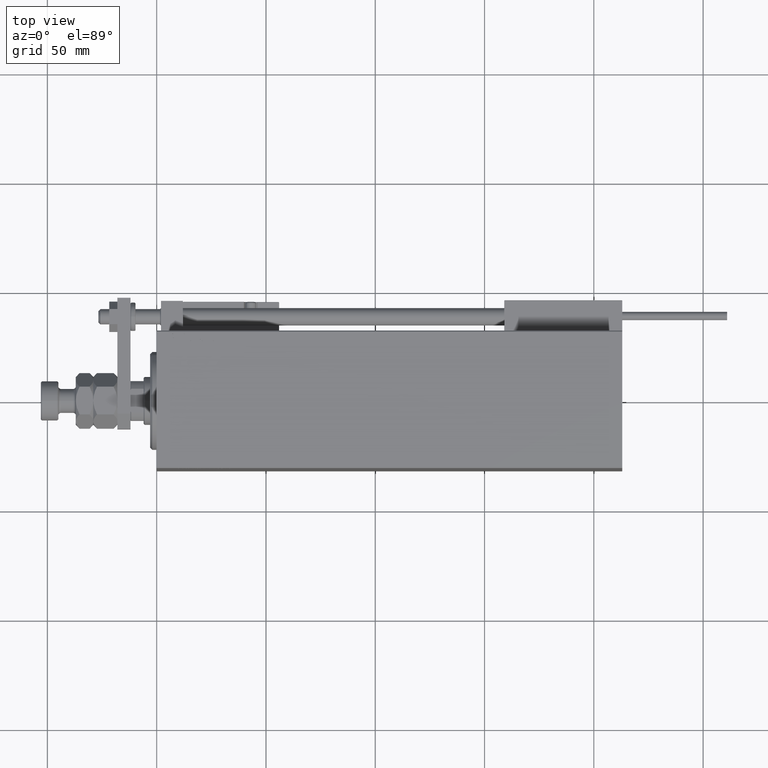
[diagram: clean part render]
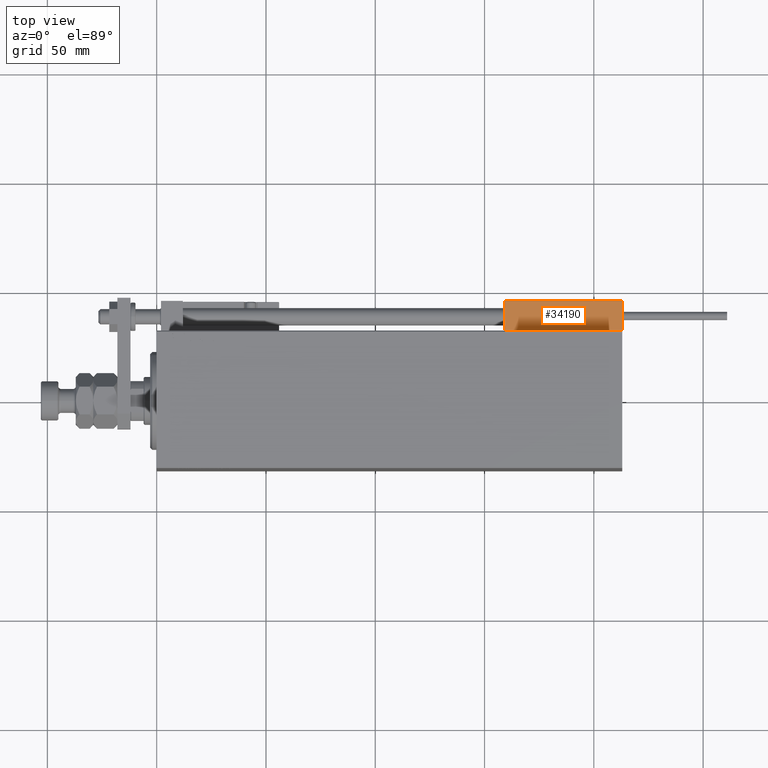
[diagram: same view with one face highlighted and labeled with its STEP entity id]
A machine part, top view. The second image highlights one B-rep face of the part: STEP entity #34190.
In plain terms, the highlighted planar face has unit normal (-0, -0, -1).
Its self-contained STEP definition (entity closure, byte-faithful):
#280 = ORIENTED_EDGE ( 'NONE', *, *, #36780, .T. ) ;
#3518 = CARTESIAN_POINT ( 'NONE',  ( -26.99999999999993605, 20.00000000000002132, 13.70000000000000107 ) ) ;
#4552 = EDGE_CURVE ( 'NONE', #31358, #20951, #20356, .T. ) ;
#5542 = VECTOR ( 'NONE', #39462, 1000.000000000000000 ) ;
#7073 = DIRECTION ( 'NONE',  ( -0.000000000000000000, -0.000000000000000000, -1.000000000000000000 ) ) ;
#7252 = VECTOR ( 'NONE', #16739, 1000.000000000000000 ) ;
#7280 = VECTOR ( 'NONE', #11205, 1000.000000000000000 ) ;
#8906 = CARTESIAN_POINT ( 'NONE',  ( 27.00000000000006395, 20.00000000000001776, 13.70000000000000107 ) ) ;
#9455 = CARTESIAN_POINT ( 'NONE',  ( 27.00000000000006395, 20.00000000000001776, 14.00000000000000000 ) ) ;
#11205 = DIRECTION ( 'NONE',  ( -1.000000000000000000, 6.424901762877062263E-17, 0.000000000000000000 ) ) ;
#12523 = VERTEX_POINT ( 'NONE', #17998 ) ;
#14748 = ORIENTED_EDGE ( 'NONE', *, *, #4552, .F. ) ;
#15611 = VERTEX_POINT ( 'NONE', #23330 ) ;
#16739 = DIRECTION ( 'NONE',  ( 1.000000000000000000, -6.424901762877063495E-17, -0.000000000000000000 ) ) ;
#17998 = CARTESIAN_POINT ( 'NONE',  ( 27.00000000000006395, 20.00000000000001776, 13.70000000000000107 ) ) ;
#18057 = PLANE ( 'NONE',  #22016 ) ;
#20356 = LINE ( 'NONE', #28458, #5542 ) ;
#20951 = VERTEX_POINT ( 'NONE', #26213 ) ;
#22016 = AXIS2_PLACEMENT_3D ( 'NONE', #9455, #30071, #29559 ) ;
#23330 = CARTESIAN_POINT ( 'NONE',  ( 27.00000000000006395, 20.00000000000001776, 0.000000000000000000 ) ) ;
#26213 = CARTESIAN_POINT ( 'NONE',  ( -26.99999999999993605, 20.00000000000002132, 0.000000000000000000 ) ) ;
#28458 = CARTESIAN_POINT ( 'NONE',  ( -26.99999999999993605, 20.00000000000002132, 14.00000000000000000 ) ) ;
#28503 = LINE ( 'NONE', #8906, #7252 ) ;
#29121 = ORIENTED_EDGE ( 'NONE', *, *, #40670, .T. ) ;
#29559 = DIRECTION ( 'NONE',  ( 1.000000000000000000, -6.424901762877063495E-17, 0.000000000000000000 ) ) ;
#30071 = DIRECTION ( 'NONE',  ( -6.424901762877063495E-17, -1.000000000000000000, 0.000000000000000000 ) ) ;
#31358 = VERTEX_POINT ( 'NONE', #3518 ) ;
#33758 = FACE_OUTER_BOUND ( 'NONE', #44473, .T. ) ;
#34190 = ADVANCED_FACE ( 'NONE', ( #33758 ), #18057, .F. ) ;
#34647 = VECTOR ( 'NONE', #7073, 1000.000000000000000 ) ;
#35038 = LINE ( 'NONE', #37203, #34647 ) ;
#35261 = CARTESIAN_POINT ( 'NONE',  ( 27.00000000000006395, 20.00000000000001776, 0.000000000000000000 ) ) ;
#36780 = EDGE_CURVE ( 'NONE', #12523, #15611, #35038, .T. ) ;
#37203 = CARTESIAN_POINT ( 'NONE',  ( 27.00000000000006395, 20.00000000000001776, 14.00000000000000000 ) ) ;
#39462 = DIRECTION ( 'NONE',  ( -0.000000000000000000, -0.000000000000000000, -1.000000000000000000 ) ) ;
#40670 = EDGE_CURVE ( 'NONE', #31358, #12523, #28503, .T. ) ;
#43610 = LINE ( 'NONE', #35261, #7280 ) ;
#44473 = EDGE_LOOP ( 'NONE', ( #14748, #29121, #280, #48604 ) ) ;
#45693 = EDGE_CURVE ( 'NONE', #15611, #20951, #43610, .T. ) ;
#48604 = ORIENTED_EDGE ( 'NONE', *, *, #45693, .T. ) ;